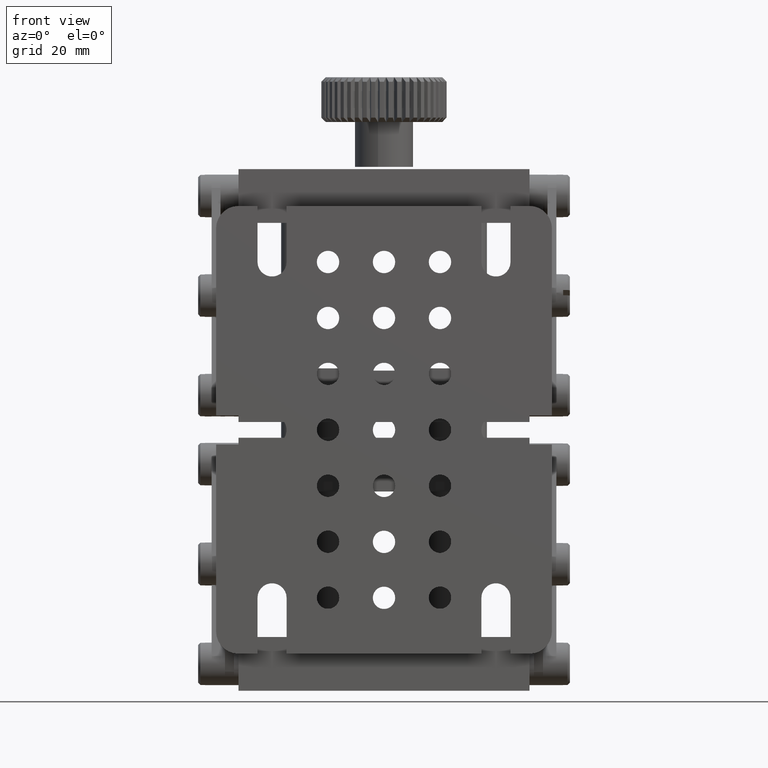
[diagram: clean part render]
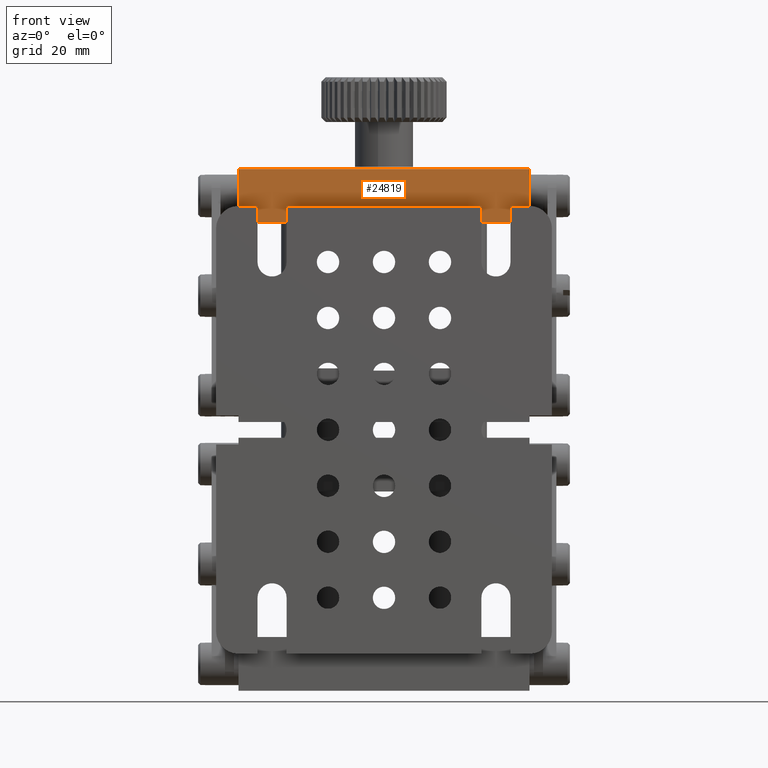
[diagram: same view with one face highlighted and labeled with its STEP entity id]
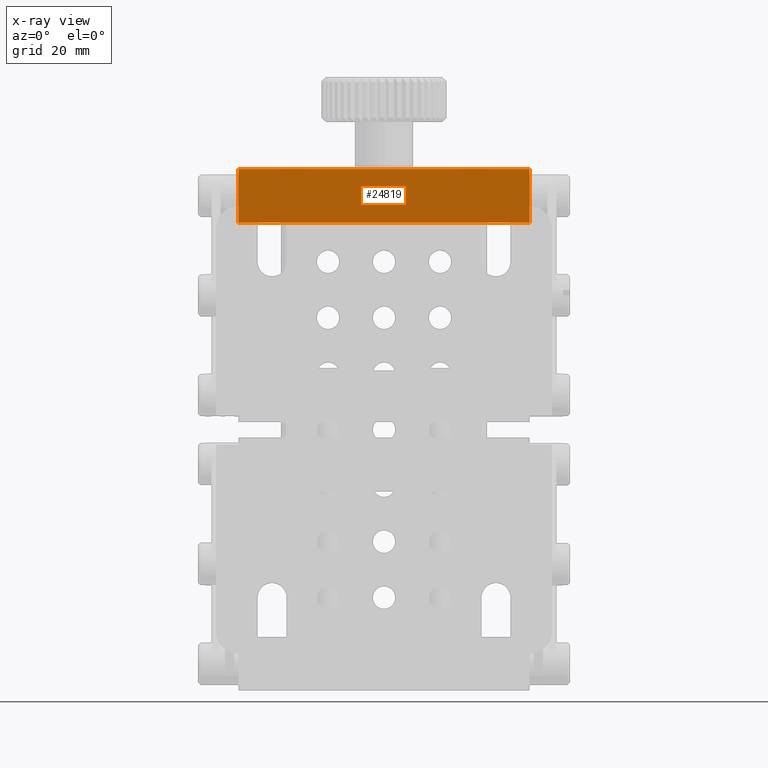
[diagram: x-ray of the same camera — body ghosted, the highlighted face saturated]
A machine part, front view. The second image highlights one B-rep face of the part: STEP entity #24819.
The next image is the same camera in x-ray: the body ghosted, the highlighted face saturated — about 0% of this face is hidden behind the body in this view.
In plain terms, the highlighted planar face has unit normal (-0, 1, 0).
Its self-contained STEP definition (entity closure, byte-faithful):
#1111 = LINE ( 'NONE', #34498, #18244 ) ;
#3324 = VERTEX_POINT ( 'NONE', #14529 ) ;
#3450 = ORIENTED_EDGE ( 'NONE', *, *, #21999, .T. ) ;
#3516 = CARTESIAN_POINT ( 'NONE',  ( -32.50000000000009200, 7.719519468096791600E-013, 58.24859546128697500 ) ) ;
#6283 = DIRECTION ( 'NONE',  ( 1.000000000000000000, 1.067522139062650400E-016, -0.0000000000000000000 ) ) ;
#9760 = LINE ( 'NONE', #3516, #26842 ) ;
#10097 = VECTOR ( 'NONE', #29686, 1000.000000000000000 ) ;
#11132 = LINE ( 'NONE', #39495, #10097 ) ;
#13443 = VERTEX_POINT ( 'NONE', #38175 ) ;
#13736 = AXIS2_PLACEMENT_3D ( 'NONE', #36141, #16862, #39356 ) ;
#13985 = VECTOR ( 'NONE', #6283, 1000.000000000000000 ) ;
#14529 = CARTESIAN_POINT ( 'NONE',  ( -32.50000000000009200, 7.719519468096791600E-013, 46.24859546128697500 ) ) ;
#15272 = DIRECTION ( 'NONE',  ( 1.000000000000000000, 1.067522139062650400E-016, -0.0000000000000000000 ) ) ;
#16862 = DIRECTION ( 'NONE',  ( -1.067522139062650300E-016, 1.000000000000000000, 0.0000000000000000000 ) ) ;
#17963 = ORIENTED_EDGE ( 'NONE', *, *, #20288, .F. ) ;
#18244 = VECTOR ( 'NONE', #15272, 1000.000000000000000 ) ;
#20288 = EDGE_CURVE ( 'NONE', #13443, #34449, #1111, .T. ) ;
#21999 = EDGE_CURVE ( 'NONE', #13443, #3324, #9760, .T. ) ;
#23219 = EDGE_CURVE ( 'NONE', #34449, #35732, #11132, .T. ) ;
#24819 = ADVANCED_FACE ( 'NONE', ( #33289 ), #39233, .F. ) ;
#25445 = ORIENTED_EDGE ( 'NONE', *, *, #25710, .T. ) ;
#25502 = CARTESIAN_POINT ( 'NONE',  ( 32.49999999999990100, 7.788908407135863900E-013, 46.24859546128697500 ) ) ;
#25710 = EDGE_CURVE ( 'NONE', #3324, #35732, #38625, .T. ) ;
#25961 = DIRECTION ( 'NONE',  ( -0.0000000000000000000, -0.0000000000000000000, -1.000000000000000000 ) ) ;
#26446 = EDGE_LOOP ( 'NONE', ( #25445, #35214, #17963, #3450 ) ) ;
#26842 = VECTOR ( 'NONE', #25961, 1000.000000000000000 ) ;
#29686 = DIRECTION ( 'NONE',  ( -0.0000000000000000000, -0.0000000000000000000, -1.000000000000000000 ) ) ;
#31763 = CARTESIAN_POINT ( 'NONE',  ( 32.49999999999990100, 7.788908407135863900E-013, 58.24859546128697500 ) ) ;
#33289 = FACE_OUTER_BOUND ( 'NONE', #26446, .T. ) ;
#34449 = VERTEX_POINT ( 'NONE', #31763 ) ;
#34498 = CARTESIAN_POINT ( 'NONE',  ( 32.49999999999990100, 7.788908407135863900E-013, 58.24859546128697500 ) ) ;
#35214 = ORIENTED_EDGE ( 'NONE', *, *, #23219, .F. ) ;
#35732 = VERTEX_POINT ( 'NONE', #36664 ) ;
#36141 = CARTESIAN_POINT ( 'NONE',  ( 32.49999999999990100, 7.788908407135863900E-013, 58.24859546128697500 ) ) ;
#36664 = CARTESIAN_POINT ( 'NONE',  ( 32.49999999999990100, 7.788908407135863900E-013, 46.24859546128697500 ) ) ;
#38175 = CARTESIAN_POINT ( 'NONE',  ( -32.50000000000009200, 7.719519468096791600E-013, 58.24859546128697500 ) ) ;
#38625 = LINE ( 'NONE', #25502, #13985 ) ;
#39233 = PLANE ( 'NONE',  #13736 ) ;
#39356 = DIRECTION ( 'NONE',  ( -1.000000000000000000, -1.067522139062650300E-016, 0.0000000000000000000 ) ) ;
#39495 = CARTESIAN_POINT ( 'NONE',  ( 32.49999999999990100, 7.788908407135863900E-013, 58.24859546128697500 ) ) ;